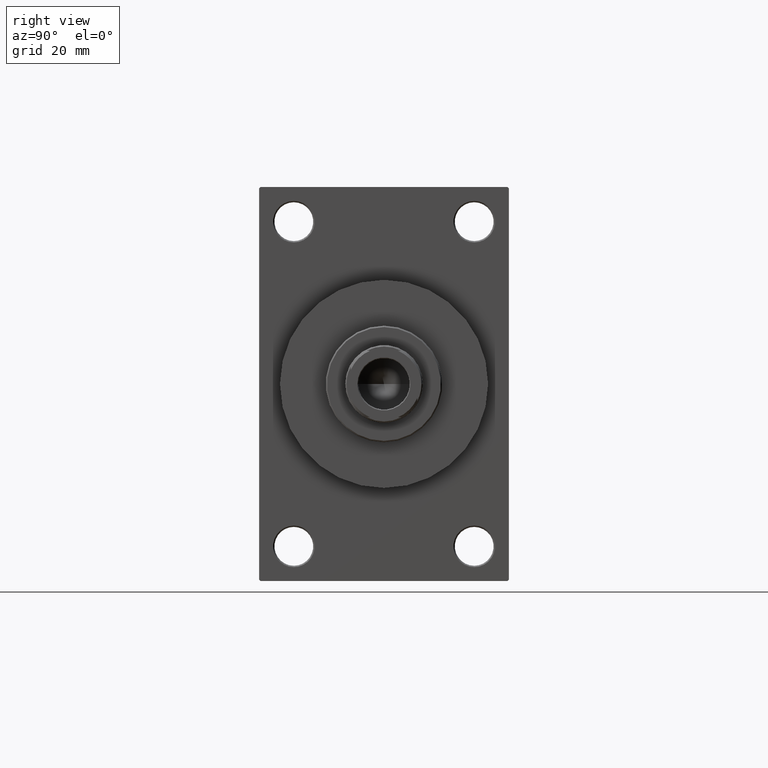
[diagram: clean part render]
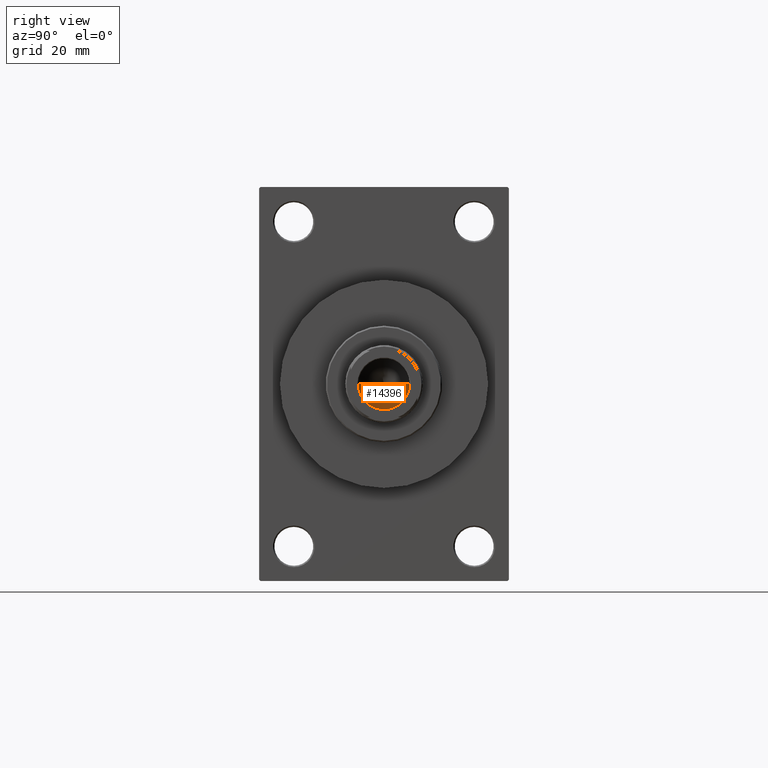
[diagram: same view with one face highlighted and labeled with its STEP entity id]
A machine part, right view. The second image highlights one B-rep face of the part: STEP entity #14396.
In plain terms, the highlighted conical surface has half-angle 59 deg.
Its self-contained STEP definition (entity closure, byte-faithful):
#4100 = CARTESIAN_POINT ( 'NONE',  ( -9.769621978240258809E-15, 0.000000000000000000, 109.4420392739950501 ) ) ;
#4575 = LINE ( 'NONE', #44900, #7063 ) ;
#5032 = CARTESIAN_POINT ( 'NONE',  ( 0.000000000000000000, 0.000000000000000000, 114.9999999999999858 ) ) ;
#6199 = VERTEX_POINT ( 'NONE', #42080 ) ;
#7063 = VECTOR ( 'NONE', #15781, 1000.000000000000000 ) ;
#7902 = DIRECTION ( 'NONE',  ( 1.000000000000000000, 0.000000000000000000, 0.000000000000000000 ) ) ;
#8130 = DIRECTION ( 'NONE',  ( 0.8571673007021117785, 0.000000000000000000, 0.5150380749100550437 ) ) ;
#8434 = VECTOR ( 'NONE', #8130, 1000.000000000000000 ) ;
#13551 = ORIENTED_EDGE ( 'NONE', *, *, #18636, .T. ) ;
#14396 = ADVANCED_FACE ( 'NONE', ( #15181 ), #32371, .F. ) ;
#14831 = LINE ( 'NONE', #44408, #8434 ) ;
#15181 = FACE_OUTER_BOUND ( 'NONE', #42260, .T. ) ;
#15781 = DIRECTION ( 'NONE',  ( -0.8571673007021117785, 1.049727191138617956E-16, 0.5150380749100550437 ) ) ;
#18447 = CARTESIAN_POINT ( 'NONE',  ( 9.249999999999992895, 0.000000000000000000, 114.9999999999999858 ) ) ;
#18636 = EDGE_CURVE ( 'NONE', #40035, #6199, #43181, .T. ) ;
#18652 = AXIS2_PLACEMENT_3D ( 'NONE', #40724, #29735, #22588 ) ;
#21859 = AXIS2_PLACEMENT_3D ( 'NONE', #5032, #22692, #7902 ) ;
#22588 = DIRECTION ( 'NONE',  ( 1.000000000000000000, 0.000000000000000000, 0.000000000000000000 ) ) ;
#22692 = DIRECTION ( 'NONE',  ( -0.000000000000000000, -0.000000000000000000, 1.000000000000000000 ) ) ;
#24313 = ORIENTED_EDGE ( 'NONE', *, *, #44507, .T. ) ;
#26429 = ORIENTED_EDGE ( 'NONE', *, *, #40067, .F. ) ;
#29735 = DIRECTION ( 'NONE',  ( -0.000000000000000000, -0.000000000000000000, 1.000000000000000000 ) ) ;
#32371 = CONICAL_SURFACE ( 'NONE', #18652, 9.249999999999992895, 1.029744258676653423 ) ;
#38551 = VERTEX_POINT ( 'NONE', #4100 ) ;
#40035 = VERTEX_POINT ( 'NONE', #18447 ) ;
#40067 = EDGE_CURVE ( 'NONE', #38551, #6199, #4575, .T. ) ;
#40724 = CARTESIAN_POINT ( 'NONE',  ( 0.000000000000000000, 0.000000000000000000, 114.9999999999999858 ) ) ;
#42080 = CARTESIAN_POINT ( 'NONE',  ( -9.249999999999992895, 1.132798289211300712E-15, 114.9999999999999858 ) ) ;
#42260 = EDGE_LOOP ( 'NONE', ( #26429, #24313, #13551 ) ) ;
#43181 = CIRCLE ( 'NONE', #21859, 9.249999999999992895 ) ;
#44408 = CARTESIAN_POINT ( 'NONE',  ( 9.249999999999992895, 0.000000000000000000, 114.9999999999999858 ) ) ;
#44507 = EDGE_CURVE ( 'NONE', #38551, #40035, #14831, .T. ) ;
#44900 = CARTESIAN_POINT ( 'NONE',  ( -9.249999999999992895, 1.132798289211300712E-15, 114.9999999999999858 ) ) ;